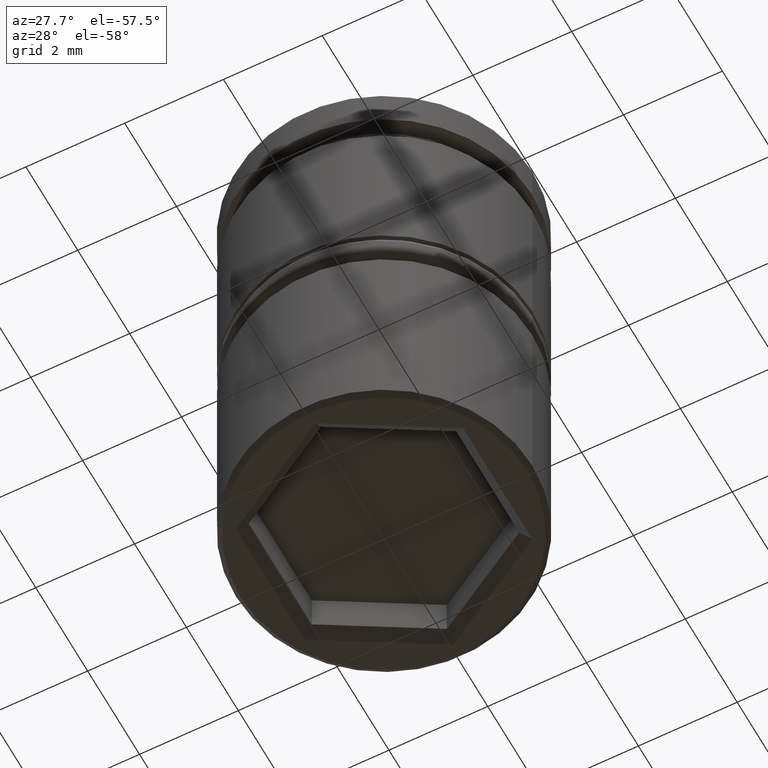
[diagram: clean part render]
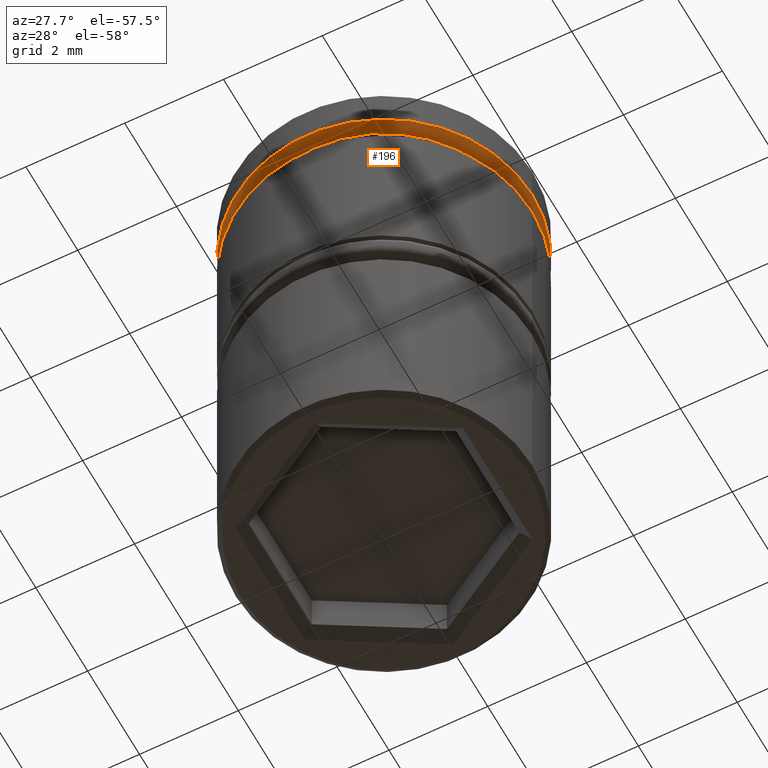
[diagram: same view with one face highlighted and labeled with its STEP entity id]
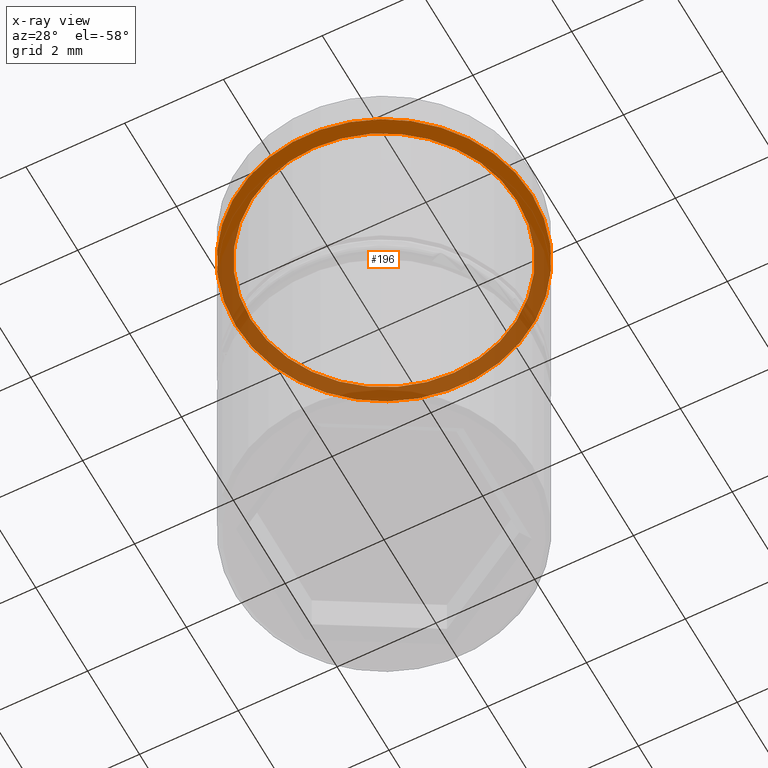
[diagram: x-ray of the same camera — body ghosted, the highlighted face saturated]
A machine part, auxiliary view. The second image highlights one B-rep face of the part: STEP entity #196.
The next image is the same camera in x-ray: the body ghosted, the highlighted face saturated — about 53% of this face is hidden behind the body in this view.
In plain terms, the highlighted planar face has unit normal (0, 0, -1).
Its self-contained STEP definition (entity closure, byte-faithful):
#4 = AXIS2_PLACEMENT_3D ( 'NONE', #278, #444, #77 ) ;
#29 = CIRCLE ( 'NONE', #696, 3.000000000000000000 ) ;
#50 = EDGE_LOOP ( 'NONE', ( #603, #1014 ) ) ;
#54 = ORIENTED_EDGE ( 'NONE', *, *, #364, .T. ) ;
#77 = DIRECTION ( 'NONE',  ( -1.000000000000000000, 0.000000000000000000, -0.000000000000000000 ) ) ;
#156 = CIRCLE ( 'NONE', #315, 2.700000000000000178 ) ;
#163 = FACE_OUTER_BOUND ( 'NONE', #50, .T. ) ;
#196 = ADVANCED_FACE ( 'NONE', ( #719, #163 ), #368, .T. ) ;
#200 = EDGE_CURVE ( 'NONE', #410, #295, #156, .T. ) ;
#229 = CARTESIAN_POINT ( 'NONE',  ( 0.000000000000000000, 0.000000000000000000, -0.8749999999999998890 ) ) ;
#250 = DIRECTION ( 'NONE',  ( 1.000000000000000000, 0.000000000000000000, 0.000000000000000000 ) ) ;
#278 = CARTESIAN_POINT ( 'NONE',  ( 0.000000000000000000, 3.000000000000000000, -0.8749999999999998890 ) ) ;
#295 = VERTEX_POINT ( 'NONE', #388 ) ;
#315 = AXIS2_PLACEMENT_3D ( 'NONE', #621, #798, #250 ) ;
#364 = EDGE_CURVE ( 'NONE', #295, #410, #677, .T. ) ;
#368 = PLANE ( 'NONE',  #4 ) ;
#388 = CARTESIAN_POINT ( 'NONE',  ( -2.700000000000000178, 3.306546357697853733E-16, -0.8749999999999998890 ) ) ;
#401 = VERTEX_POINT ( 'NONE', #426 ) ;
#410 = VERTEX_POINT ( 'NONE', #1061 ) ;
#417 = CARTESIAN_POINT ( 'NONE',  ( -3.000000000000000000, 3.673940397442059868E-16, -0.8749999999999998890 ) ) ;
#426 = CARTESIAN_POINT ( 'NONE',  ( 3.000000000000000000, 0.000000000000000000, -0.8749999999999998890 ) ) ;
#430 = AXIS2_PLACEMENT_3D ( 'NONE', #229, #667, #597 ) ;
#444 = DIRECTION ( 'NONE',  ( 0.000000000000000000, 0.000000000000000000, -1.000000000000000000 ) ) ;
#597 = DIRECTION ( 'NONE',  ( 1.000000000000000000, 0.000000000000000000, 0.000000000000000000 ) ) ;
#603 = ORIENTED_EDGE ( 'NONE', *, *, #896, .F. ) ;
#621 = CARTESIAN_POINT ( 'NONE',  ( 0.000000000000000000, 0.000000000000000000, -0.8749999999999998890 ) ) ;
#626 = DIRECTION ( 'NONE',  ( -0.000000000000000000, -0.000000000000000000, 1.000000000000000000 ) ) ;
#667 = DIRECTION ( 'NONE',  ( -0.000000000000000000, -0.000000000000000000, 1.000000000000000000 ) ) ;
#671 = VERTEX_POINT ( 'NONE', #417 ) ;
#677 = CIRCLE ( 'NONE', #430, 2.700000000000000178 ) ;
#696 = AXIS2_PLACEMENT_3D ( 'NONE', #817, #903, #1178 ) ;
#719 = FACE_BOUND ( 'NONE', #981, .T. ) ;
#798 = DIRECTION ( 'NONE',  ( -0.000000000000000000, -0.000000000000000000, 1.000000000000000000 ) ) ;
#817 = CARTESIAN_POINT ( 'NONE',  ( 0.000000000000000000, 0.000000000000000000, -0.8749999999999998890 ) ) ;
#822 = EDGE_CURVE ( 'NONE', #671, #401, #918, .T. ) ;
#840 = ORIENTED_EDGE ( 'NONE', *, *, #200, .T. ) ;
#896 = EDGE_CURVE ( 'NONE', #401, #671, #29, .T. ) ;
#903 = DIRECTION ( 'NONE',  ( -0.000000000000000000, -0.000000000000000000, 1.000000000000000000 ) ) ;
#918 = CIRCLE ( 'NONE', #1089, 3.000000000000000000 ) ;
#977 = DIRECTION ( 'NONE',  ( 1.000000000000000000, 0.000000000000000000, 0.000000000000000000 ) ) ;
#981 = EDGE_LOOP ( 'NONE', ( #840, #54 ) ) ;
#1014 = ORIENTED_EDGE ( 'NONE', *, *, #822, .F. ) ;
#1061 = CARTESIAN_POINT ( 'NONE',  ( 2.700000000000000178, 0.000000000000000000, -0.8749999999999998890 ) ) ;
#1064 = CARTESIAN_POINT ( 'NONE',  ( 0.000000000000000000, 0.000000000000000000, -0.8749999999999998890 ) ) ;
#1089 = AXIS2_PLACEMENT_3D ( 'NONE', #1064, #626, #977 ) ;
#1178 = DIRECTION ( 'NONE',  ( 1.000000000000000000, 0.000000000000000000, 0.000000000000000000 ) ) ;